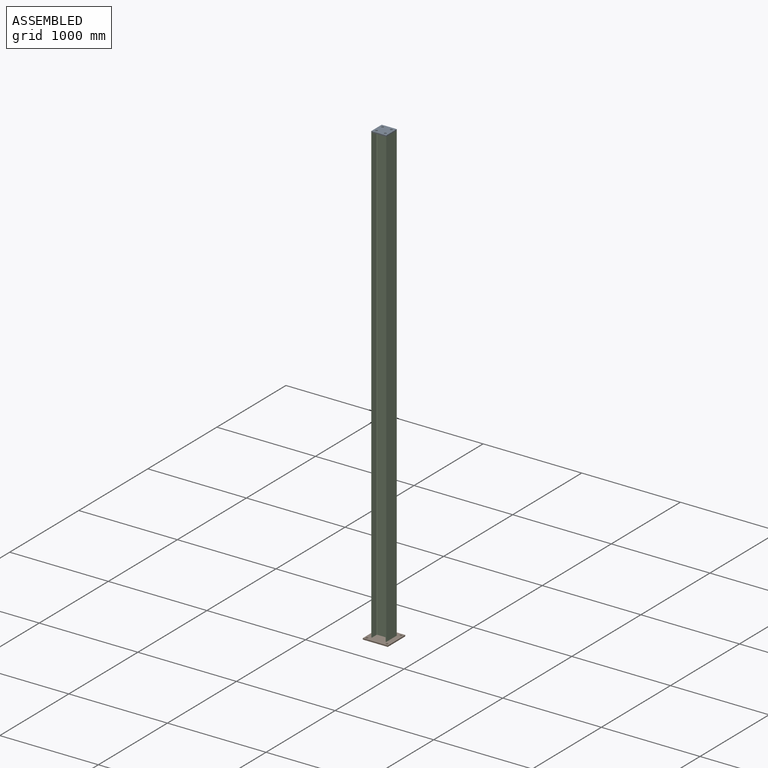
[diagram: assembled view]
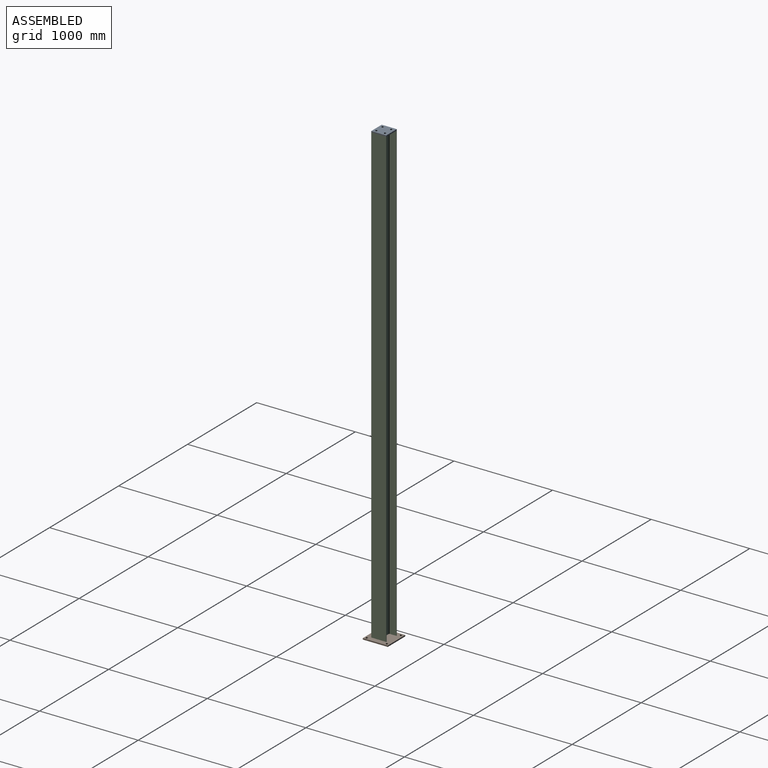
[diagram: assembled view, second angle]
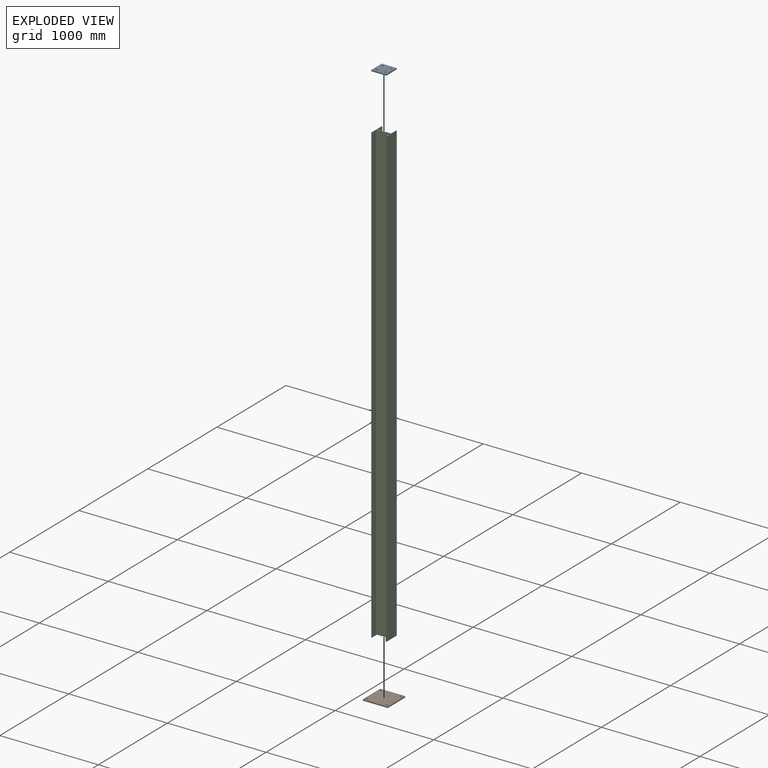
[diagram: exploded view]
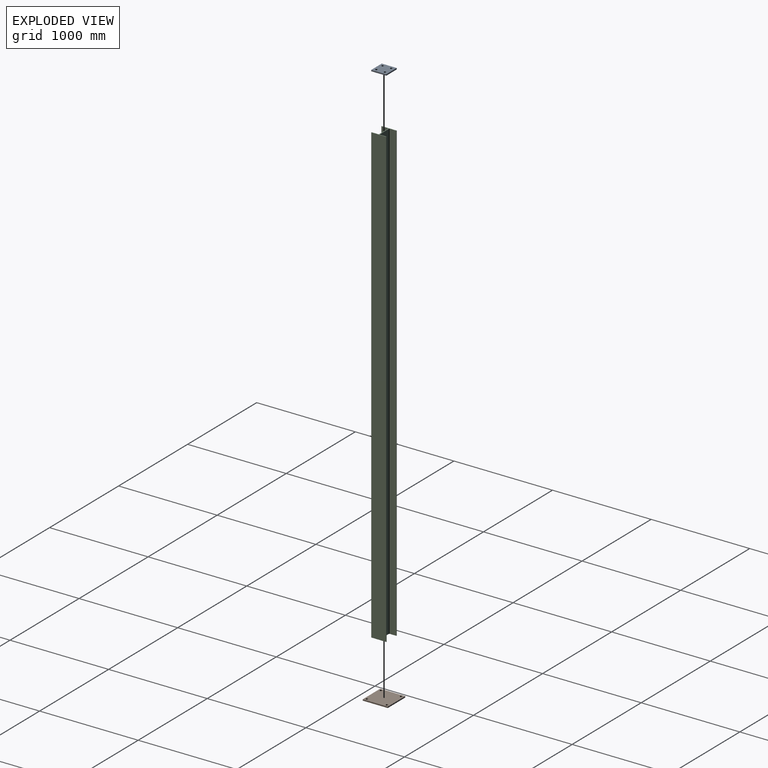
[diagram: exploded view, second angle]
ASSEMBLY  parts=3 mates=2
PART A: 10 faces, bbox 152.1x152.1x12.7 mm
  f0: plane 152.15x152.15mm, normal (0,0,1), area 21596.6mm2, adj f1,f2,f3,f4,f5,f6,f7,f8
  f1: plane 152.15x12.7mm, normal (1,0,0), area 1932.3mm2, adj f0,f2,f7,f9
  f2: plane 152.15x12.7mm, normal (0,1,0), area 1932.3mm2, adj f0,f1,f3,f9
  f3: plane 152.15x12.7mm, normal (-1,0,0), area 1932.3mm2, adj f0,f2,f7,f9
  f4: cylinder r=11.11mm len=22.23mm, axis (0,0,-1), area 886.7mm2, adj f0,f9
  f5: cylinder r=11.11mm len=22.23mm, axis (0,0,-1), area 886.7mm2, adj f0,f9
  f6: cylinder r=11.11mm len=22.23mm, axis (0,0,-1), area 886.7mm2, adj f0,f9
  f7: plane 152.15x12.7mm, normal (0,-1,0), area 1932.3mm2, adj f0,f1,f3,f9
  f8: cylinder r=11.11mm len=22.23mm, axis (0,0,-1), area 886.7mm2, adj f0,f9
  f9: plane 152.15x152.15mm, normal (0,0,-1), area 21596.6mm2, adj f1,f2,f3,f4,f5,f6,f7,f8
PART B: 10 faces, bbox 254x254x12.7 mm
  f0: plane 254x254mm, normal (0,0,-1), area 62964.2mm2, adj f1,f2,f3,f4,f5,f6,f7,f8
  f1: plane 254x12.7mm, normal (1,0,0), area 3225.8mm2, adj f0,f2,f7,f9
  f2: plane 254x12.7mm, normal (0,-1,0), area 3225.8mm2, adj f0,f1,f3,f9
  f3: plane 254x12.7mm, normal (-1,0,0), area 3225.8mm2, adj f0,f2,f7,f9
  f4: cylinder r=11.11mm len=22.23mm, axis (0,0,1), area 886.7mm2, adj f0,f9
  f5: cylinder r=11.11mm len=22.23mm, axis (0,0,1), area 886.7mm2, adj f0,f9
  f6: cylinder r=11.11mm len=22.23mm, axis (0,0,1), area 886.7mm2, adj f0,f9
  f7: plane 254x12.7mm, normal (0,1,0), area 3225.8mm2, adj f0,f1,f3,f9
  f8: cylinder r=11.11mm len=22.23mm, axis (0,0,1), area 886.7mm2, adj f0,f9
  f9: plane 254x254mm, normal (0,0,1), area 62964.2mm2, adj f1,f2,f3,f4,f5,f6,f7,f8
PART C: 18 faces, bbox 152.1x152.1x4629.4 mm
  f0: plane 152.15x152.15mm, normal (0,0,-1), area 2739.9mm2, adj f1,f2,f3,f4,f5,f6,f7,f8
  f1: cylinder r=6.35mm len=4629.4mm, axis (0,0,1), area 46176.8mm2, adj f0,f2,f16,f17
  f2: plane 4629.4x127.76mm, normal (-1,0,0), area 591461.9mm2, adj f0,f1,f3,f17
  f3: cylinder r=6.35mm len=4629.4mm, axis (0,0,1), area 46176.8mm2, adj f0,f2,f4,f17
  f4: plane 4629.4x66.42mm, normal (0,1,0), area 307489.6mm2, adj f0,f3,f5,f17
  f5: plane 4629.4x5.84mm, normal (-1,0,0), area 27045mm2, adj f0,f4,f6,f17
  f6: plane 4629.4x152.15mm, normal (0,-1,0), area 704345.3mm2, adj f0,f5,f7,f17
  f7: plane 4629.4x5.84mm, normal (1,0,0), area 27045mm2, adj f0,f6,f8,f17
  f8: plane 4629.4x66.42mm, normal (0,1,0), area 307489.6mm2, adj f0,f7,f9,f17
  f9: cylinder r=6.35mm len=4629.4mm, axis (0,0,1), area 46176.8mm2, adj f0,f8,f10,f17
  f10: plane 4629.4x127.76mm, normal (1,0,0), area 591461.9mm2, adj f0,f9,f11,f17
  f11: cylinder r=6.35mm len=4629.4mm, axis (0,0,1), area 46176.8mm2, adj f0,f10,f12,f17
  f12: plane 4629.4x66.42mm, normal (0,-1,0), area 307489.6mm2, adj f0,f11,f13,f17
  f13: plane 4629.4x5.84mm, normal (1,0,0), area 27045mm2, adj f0,f12,f14,f17
  f14: plane 4629.4x152.15mm, normal (0,1,0), area 704345.3mm2, adj f0,f13,f15,f17
  f15: plane 4629.4x5.84mm, normal (-1,0,0), area 27045mm2, adj f0,f14,f16,f17
  f16: plane 4629.4x66.42mm, normal (0,-1,0), area 307489.6mm2, adj f0,f1,f15,f17
  f17: plane 152.15x152.15mm, normal (0,0,1), area 2739.9mm2, adj f1,f2,f3,f4,f5,f6,f7,f8
PLACE A rot(axis=(0.71,-0.71,0),180deg) t=(-2310.59,5085.46,7964.54)mm
PLACE B rot(axis=(0,0,-1),90deg) t=(889.55,5085.51,-1332.37)mm
PLACE C rot(axis=(0,0,-1),90deg) t=(889.55,5085.51,-1332.37)mm
MATE fastened A.f0 <-> C.f17  axis (0,0,-1) through (-710.52,7295.18,3309.74)mm
MATE fastened C.f0 <-> B.f9  axis (0,0,-1) through (-710.52,7295.18,-1319.67)mm
